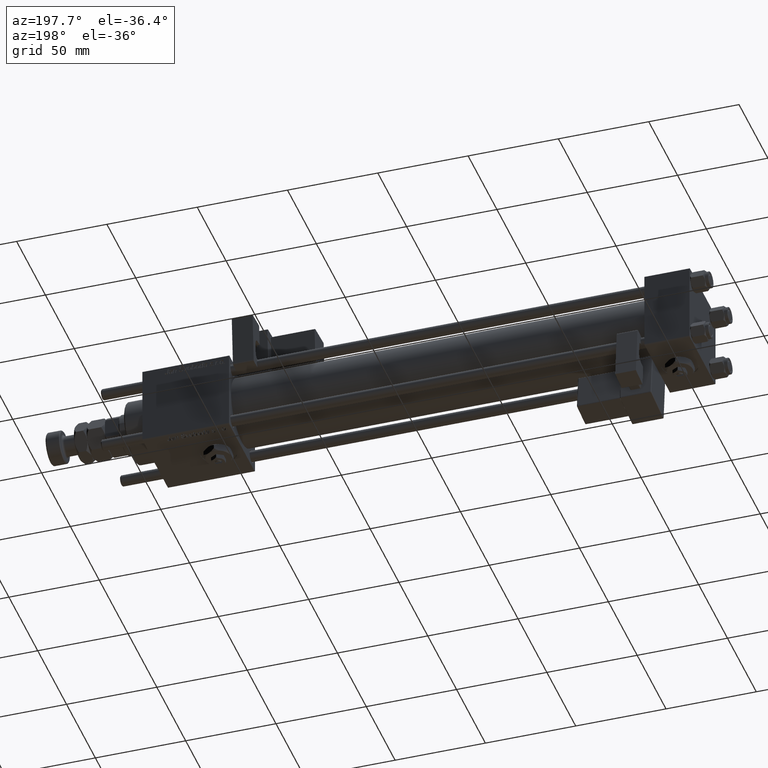
[diagram: clean part render]
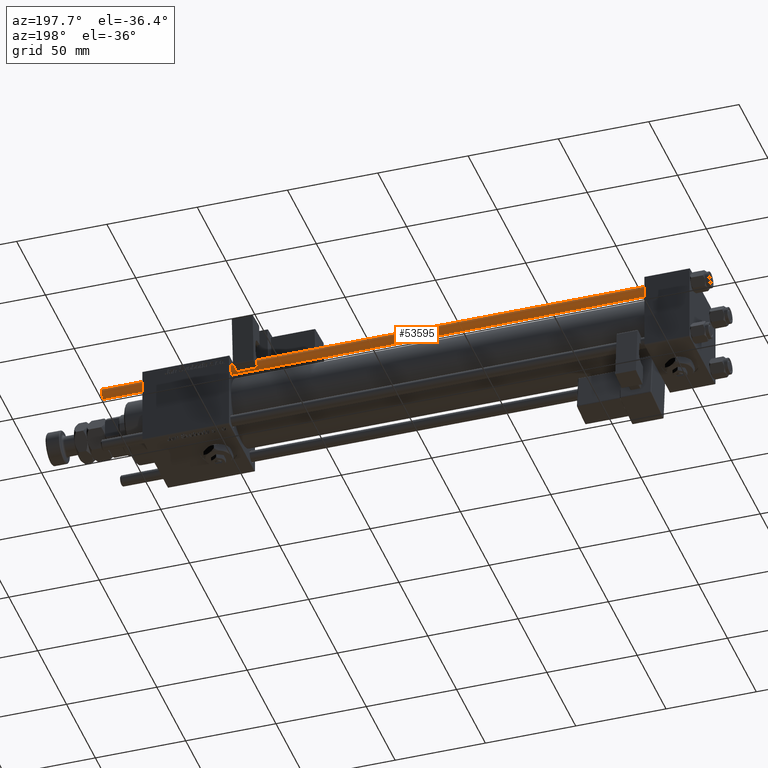
[diagram: same view with one face highlighted and labeled with its STEP entity id]
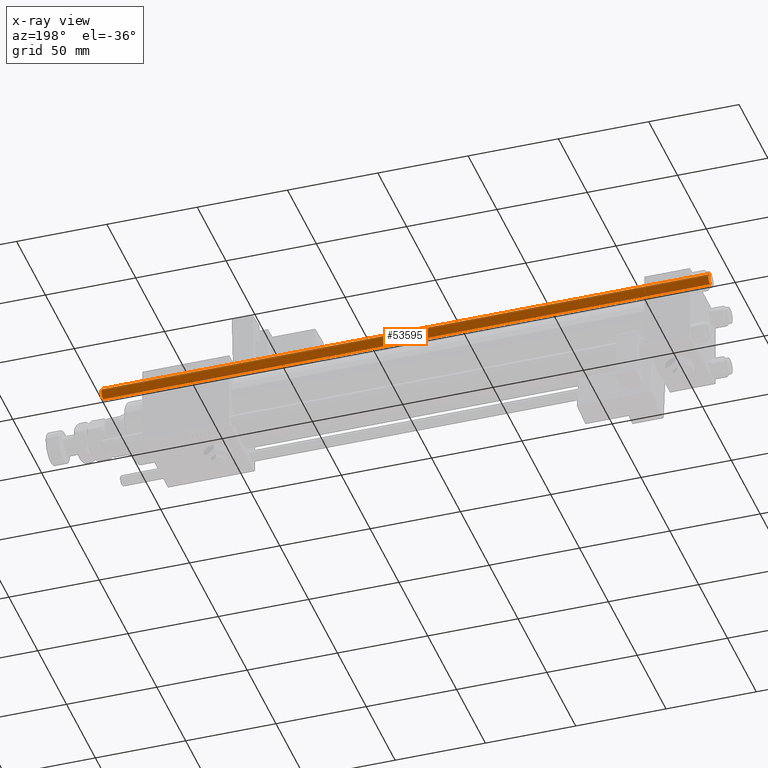
[diagram: x-ray of the same camera — body ghosted, the highlighted face saturated]
A machine part, auxiliary view. The second image highlights one B-rep face of the part: STEP entity #53595.
The next image is the same camera in x-ray: the body ghosted, the highlighted face saturated — about 0% of this face is hidden behind the body in this view.
In plain terms, the highlighted cylindrical surface (edge-blend (fillet) strip) has radius 3 mm, axis along (1, -0, -0).
Its self-contained STEP definition (entity closure, byte-faithful):
#123 = EDGE_CURVE ( 'NONE', #51061, #11475, #37200, .T. ) ;
#2529 = VECTOR ( 'NONE', #53881, 1000.000000000000000 ) ;
#7747 = CYLINDRICAL_SURFACE ( 'NONE', #49068, 3.000000000000000444 ) ;
#9278 = DIRECTION ( 'NONE',  ( 0.000000000000000000, 0.000000000000000000, -1.000000000000000000 ) ) ;
#9509 = ORIENTED_EDGE ( 'NONE', *, *, #123, .T. ) ;
#9858 = AXIS2_PLACEMENT_3D ( 'NONE', #19418, #9278, #20055 ) ;
#11475 = VERTEX_POINT ( 'NONE', #19843 ) ;
#12298 = DIRECTION ( 'NONE',  ( -0.000000000000000000, -0.000000000000000000, 1.000000000000000000 ) ) ;
#12922 = CARTESIAN_POINT ( 'NONE',  ( 0.000000000000000000, 0.000000000000000000, 0.5000000000000004441 ) ) ;
#13458 = AXIS2_PLACEMENT_3D ( 'NONE', #12922, #12298, #36719 ) ;
#17392 = VERTEX_POINT ( 'NONE', #18343 ) ;
#18343 = CARTESIAN_POINT ( 'NONE',  ( 3.000000000000000444, 3.673940397442060361E-16, 0.5000000000000004441 ) ) ;
#18966 = LINE ( 'NONE', #19914, #2529 ) ;
#19059 = EDGE_CURVE ( 'NONE', #17392, #51844, #21584, .T. ) ;
#19418 = CARTESIAN_POINT ( 'NONE',  ( 0.000000000000000000, 0.000000000000000000, 336.5000000000000568 ) ) ;
#19551 = ORIENTED_EDGE ( 'NONE', *, *, #62808, .F. ) ;
#19843 = CARTESIAN_POINT ( 'NONE',  ( 3.000000000000000444, 3.673940397442060361E-16, 336.5000000000000568 ) ) ;
#19914 = CARTESIAN_POINT ( 'NONE',  ( 3.000000000000000444, 3.673940397442060361E-16, 337.0000000000000000 ) ) ;
#20055 = DIRECTION ( 'NONE',  ( 1.000000000000000000, 0.000000000000000000, 0.000000000000000000 ) ) ;
#21584 = CIRCLE ( 'NONE', #13458, 3.000000000000000444 ) ;
#21937 = VECTOR ( 'NONE', #25668, 1000.000000000000000 ) ;
#25668 = DIRECTION ( 'NONE',  ( -0.000000000000000000, -0.000000000000000000, -1.000000000000000000 ) ) ;
#27086 = DIRECTION ( 'NONE',  ( -0.000000000000000000, -0.000000000000000000, -1.000000000000000000 ) ) ;
#35168 = LINE ( 'NONE', #54880, #21937 ) ;
#36713 = ORIENTED_EDGE ( 'NONE', *, *, #19059, .T. ) ;
#36719 = DIRECTION ( 'NONE',  ( 1.000000000000000000, 0.000000000000000000, 0.000000000000000000 ) ) ;
#36919 = CARTESIAN_POINT ( 'NONE',  ( -3.000000000000000444, 0.000000000000000000, 336.5000000000000568 ) ) ;
#37200 = CIRCLE ( 'NONE', #9858, 3.000000000000000444 ) ;
#46472 = DIRECTION ( 'NONE',  ( -1.000000000000000000, 0.000000000000000000, 0.000000000000000000 ) ) ;
#46785 = CARTESIAN_POINT ( 'NONE',  ( 0.000000000000000000, 0.000000000000000000, 337.0000000000000000 ) ) ;
#47781 = ORIENTED_EDGE ( 'NONE', *, *, #55841, .T. ) ;
#49068 = AXIS2_PLACEMENT_3D ( 'NONE', #46785, #27086, #46472 ) ;
#50186 = EDGE_LOOP ( 'NONE', ( #9509, #47781, #36713, #19551 ) ) ;
#50703 = CARTESIAN_POINT ( 'NONE',  ( -3.000000000000000444, 0.000000000000000000, 0.5000000000000004441 ) ) ;
#51061 = VERTEX_POINT ( 'NONE', #36919 ) ;
#51230 = FACE_OUTER_BOUND ( 'NONE', #50186, .T. ) ;
#51844 = VERTEX_POINT ( 'NONE', #50703 ) ;
#53595 = ADVANCED_FACE ( 'NONE', ( #51230 ), #7747, .T. ) ;
#53881 = DIRECTION ( 'NONE',  ( -0.000000000000000000, -0.000000000000000000, -1.000000000000000000 ) ) ;
#54880 = CARTESIAN_POINT ( 'NONE',  ( -3.000000000000000444, 0.000000000000000000, 337.0000000000000000 ) ) ;
#55841 = EDGE_CURVE ( 'NONE', #11475, #17392, #18966, .T. ) ;
#62808 = EDGE_CURVE ( 'NONE', #51061, #51844, #35168, .T. ) ;